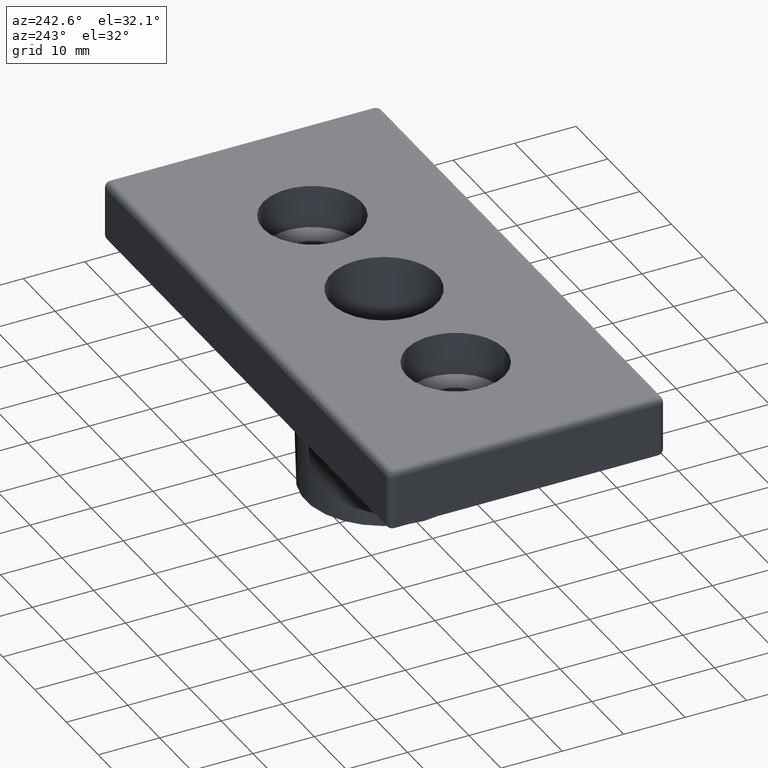
[diagram: clean part render]
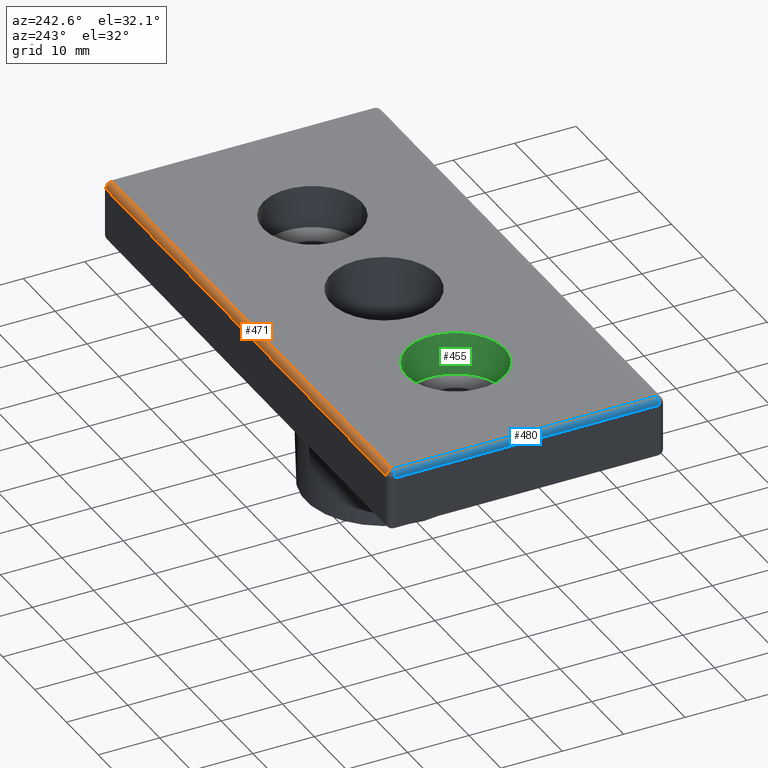
[diagram: same view with three faces highlighted in distinct colors, each labeled with its STEP entity id]
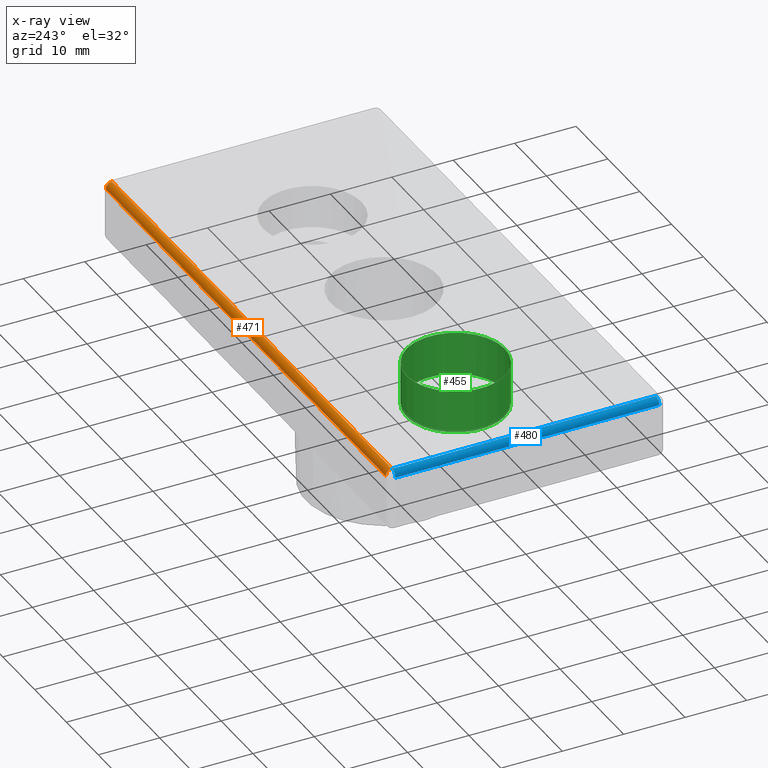
[diagram: x-ray of the same camera — body ghosted, the three highlighted faces saturated]
A machine part, auxiliary view with three faces highlighted in distinct colors.
The next image is the same camera in x-ray (body ghosted, the three faces saturated) — at least one of them is partly hidden behind the body in this view.
Their STEP definitions:

[orange] entity #471 — the highlighted cylindrical surface (edge-blend (fillet) strip) has radius 1 mm, axis along (1, 0, 0).
#33=LINE('',#783,#57);
#46=LINE('',#811,#70);
#57=VECTOR('',#614,87.999999998859);
#70=VECTOR('',#633,88.);
#117=FACE_OUTER_BOUND('',#167,.T.);
#167=EDGE_LOOP('',(#383,#384,#385,#386));
#197=CIRCLE('',#521,1.);
#203=CIRCLE('',#531,1.);
#239=VERTEX_POINT('',#780);
#240=VERTEX_POINT('',#782);
#249=VERTEX_POINT('',#804);
#252=VERTEX_POINT('',#809);
#275=EDGE_CURVE('',#239,#240,#33,.T.);
#288=EDGE_CURVE('',#252,#249,#46,.T.);
#293=EDGE_CURVE('',#252,#240,#197,.T.);
#299=EDGE_CURVE('',#249,#239,#203,.T.);
#383=ORIENTED_EDGE('',*,*,#293,.T.);
#384=ORIENTED_EDGE('',*,*,#275,.F.);
#385=ORIENTED_EDGE('',*,*,#299,.F.);
#386=ORIENTED_EDGE('',*,*,#288,.F.);
#442=CYLINDRICAL_SURFACE('',#530,1.);
#471=ADVANCED_FACE('',(#117),#442,.T.);
#521=AXIS2_PLACEMENT_3D('',#821,#652,#653);
#530=AXIS2_PLACEMENT_3D('',#830,#670,#671);
#531=AXIS2_PLACEMENT_3D('',#831,#672,#673);
#614=DIRECTION('',(1.,0.,0.));
#633=DIRECTION('',(-1.,0.,0.));
#652=DIRECTION('center_axis',(-1.,0.,0.));
#653=DIRECTION('ref_axis',(0.,0.,-1.));
#670=DIRECTION('center_axis',(1.,0.,0.));
#671=DIRECTION('ref_axis',(0.,0.,-1.));
#672=DIRECTION('center_axis',(-1.,0.,0.));
#673=DIRECTION('ref_axis',(0.,0.,1.));
#780=CARTESIAN_POINT('',(-88.7071067805973,22.5,8.7071067805973));
#782=CARTESIAN_POINT('',(-0.707106781738272,22.5,8.70710678063477));
#783=CARTESIAN_POINT('',(-88.7071067811865,22.5,8.70710678118655));
#804=CARTESIAN_POINT('',(-88.7071067811865,21.5,9.70710678118655));
#809=CARTESIAN_POINT('',(-0.707106781186493,21.5,9.70710678118655));
#811=CARTESIAN_POINT('',(-0.707106781186493,21.5,9.70710678118655));
#821=CARTESIAN_POINT('Origin',(-0.707106781186493,21.5,8.70710678118655));
#830=CARTESIAN_POINT('Origin',(-88.7071067911865,21.5,8.70710678118655));
#831=CARTESIAN_POINT('Origin',(-88.7071067811865,21.5,8.70710678118655));

[blue] entity #480 — the highlighted cylindrical surface (edge-blend (fillet) strip) has radius 1 mm, axis along (0, 1, 0).
#37=LINE('',#792,#61);
#43=LINE('',#806,#67);
#61=VECTOR('',#620,43.);
#67=VECTOR('',#630,43.);
#126=FACE_OUTER_BOUND('',#176,.T.);
#176=EDGE_LOOP('',(#415,#416,#417,#418));
#209=CIRCLE('',#542,1.);
#213=CIRCLE('',#550,1.);
#243=VERTEX_POINT('',#789);
#244=VERTEX_POINT('',#791);
#249=VERTEX_POINT('',#804);
#250=VERTEX_POINT('',#805);
#279=EDGE_CURVE('',#243,#244,#37,.T.);
#285=EDGE_CURVE('',#249,#250,#43,.T.);
#305=EDGE_CURVE('',#249,#244,#209,.T.);
#309=EDGE_CURVE('',#250,#243,#213,.T.);
#415=ORIENTED_EDGE('',*,*,#305,.T.);
#416=ORIENTED_EDGE('',*,*,#279,.F.);
#417=ORIENTED_EDGE('',*,*,#309,.F.);
#418=ORIENTED_EDGE('',*,*,#285,.F.);
#447=CYLINDRICAL_SURFACE('',#549,1.);
#480=ADVANCED_FACE('',(#126),#447,.T.);
#542=AXIS2_PLACEMENT_3D('',#842,#694,#695);
#549=AXIS2_PLACEMENT_3D('',#849,#708,#709);
#550=AXIS2_PLACEMENT_3D('',#850,#710,#711);
#620=DIRECTION('',(0.,1.,0.));
#630=DIRECTION('',(0.,-1.,0.));
#694=DIRECTION('center_axis',(0.,-1.,0.));
#695=DIRECTION('ref_axis',(0.,0.,1.));
#708=DIRECTION('center_axis',(0.,1.,0.));
#709=DIRECTION('ref_axis',(0.707106781186548,0.,-0.707106781186547));
#710=DIRECTION('center_axis',(0.,-1.,0.));
#711=DIRECTION('ref_axis',(0.,0.,-1.));
#789=CARTESIAN_POINT('',(-89.7071067811865,-21.5,8.70710678118655));
#791=CARTESIAN_POINT('',(-89.7071067811865,21.5,8.70710678118655));
#792=CARTESIAN_POINT('',(-89.7071067811865,-21.5,8.70710678118655));
#804=CARTESIAN_POINT('',(-88.7071067811865,21.5,9.70710678118655));
#805=CARTESIAN_POINT('',(-88.7071067811865,-21.5,9.70710678118655));
#806=CARTESIAN_POINT('',(-88.7071067811865,21.5,9.70710678118655));
#842=CARTESIAN_POINT('Origin',(-88.7071067811865,21.5,8.70710678118655));
#849=CARTESIAN_POINT('Origin',(-88.7071067811865,-21.50000001,8.70710678118655));
#850=CARTESIAN_POINT('Origin',(-88.7071067811865,-21.5,8.70710678118655));

[green] entity #455 — the highlighted cylindrical surface (bore or boss wall) has radius 8 mm, axis along (0, 0, -1).
#86=FACE_BOUND('',#142,.T.);
#101=FACE_OUTER_BOUND('',#141,.T.);
#141=EDGE_LOOP('',(#323));
#142=EDGE_LOOP('',(#324));
#189=CIRCLE('',#501,8.);
#190=CIRCLE('',#502,8.);
#225=VERTEX_POINT('',#749);
#226=VERTEX_POINT('',#751);
#261=EDGE_CURVE('',#225,#225,#189,.T.);
#262=EDGE_CURVE('',#226,#226,#190,.T.);
#323=ORIENTED_EDGE('',*,*,#261,.F.);
#324=ORIENTED_EDGE('',*,*,#262,.F.);
#436=CYLINDRICAL_SURFACE('',#500,8.);
#455=ADVANCED_FACE('',(#101,#86),#436,.F.);
#500=AXIS2_PLACEMENT_3D('',#748,#586,#587);
#501=AXIS2_PLACEMENT_3D('',#750,#588,#589);
#502=AXIS2_PLACEMENT_3D('',#752,#590,#591);
#586=DIRECTION('center_axis',(0.,0.,-1.));
#587=DIRECTION('ref_axis',(-1.,0.,0.));
#588=DIRECTION('center_axis',(0.,0.,-1.));
#589=DIRECTION('ref_axis',(0.,-1.,0.));
#590=DIRECTION('center_axis',(0.,0.,1.));
#591=DIRECTION('ref_axis',(0.,-1.,0.));
#748=CARTESIAN_POINT('Origin',(-67.2071067811865,0.,9.70710679118655));
#749=CARTESIAN_POINT('',(-67.2071067811865,-8.,9.70710678118655));
#750=CARTESIAN_POINT('Origin',(-67.2071067811865,0.,9.70710678118655));
#751=CARTESIAN_POINT('',(-67.2071067811865,-8.,2.70710678118655));
#752=CARTESIAN_POINT('Origin',(-67.2071067811865,0.,2.70710678118655));